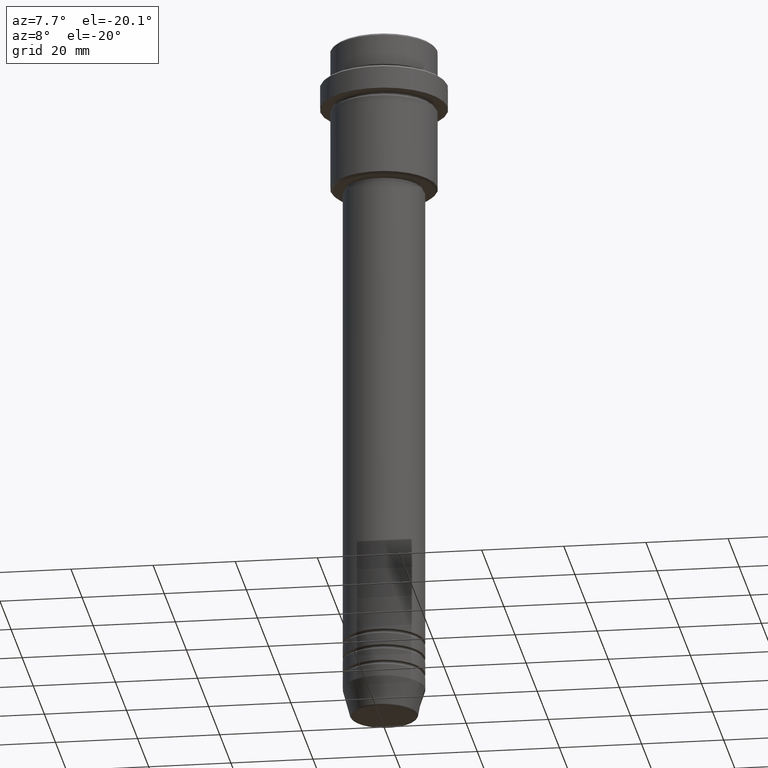
[diagram: clean part render]
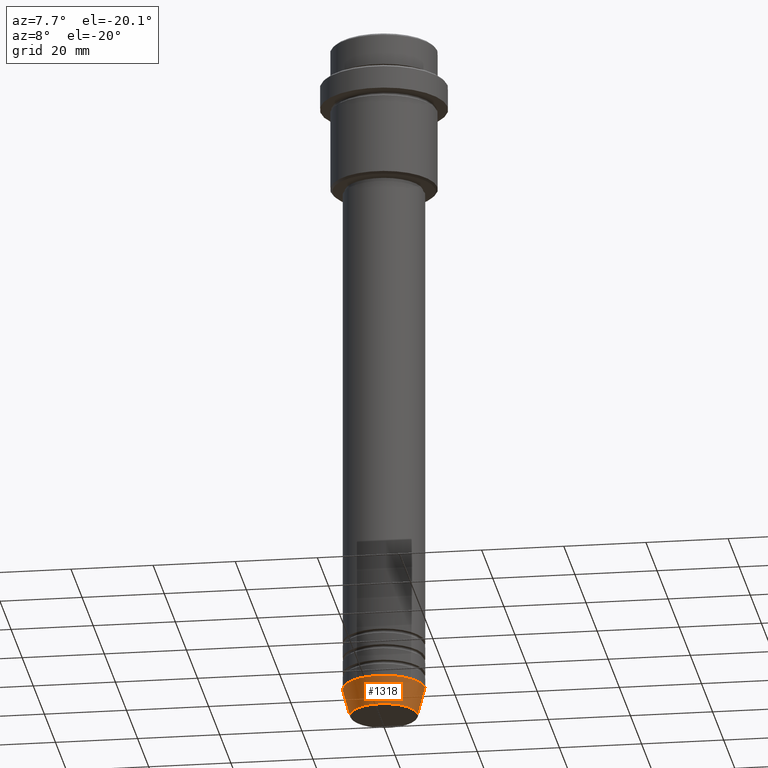
[diagram: same view with one face highlighted and labeled with its STEP entity id]
A machine part, auxiliary view. The second image highlights one B-rep face of the part: STEP entity #1318.
In plain terms, the highlighted conical surface has half-angle 15 deg.
Its self-contained STEP definition (entity closure, byte-faithful):
#99 = EDGE_CURVE ( 'NONE', #1014, #1352, #1308, .T. ) ;
#164 = DIRECTION ( 'NONE',  ( -0.000000000000000000, -0.000000000000000000, 1.000000000000000000 ) ) ;
#236 = DIRECTION ( 'NONE',  ( -0.2588190451025222938, 3.169619151431783430E-17, 0.9659258262890678681 ) ) ;
#292 = CARTESIAN_POINT ( 'NONE',  ( -10.00000000000000000, 1.224646799147353256E-15, -164.0000000000000000 ) ) ;
#308 = ORIENTED_EDGE ( 'NONE', *, *, #412, .T. ) ;
#352 = CARTESIAN_POINT ( 'NONE',  ( -10.00000000000000000, 1.224646799147353256E-15, -164.0000000000000000 ) ) ;
#401 = CARTESIAN_POINT ( 'NONE',  ( 0.000000000000000000, 0.000000000000000000, -164.0000000000000000 ) ) ;
#402 = CARTESIAN_POINT ( 'NONE',  ( -8.223655072137191269, 1.115877042642912054E-15, -170.6294095225512422 ) ) ;
#405 = EDGE_CURVE ( 'NONE', #581, #1014, #777, .T. ) ;
#412 = EDGE_CURVE ( 'NONE', #581, #1291, #752, .T. ) ;
#421 = CONICAL_SURFACE ( 'NONE', #600, 10.00000000000000000, 0.2617993877991510177 ) ;
#492 = ORIENTED_EDGE ( 'NONE', *, *, #99, .F. ) ;
#581 = VERTEX_POINT ( 'NONE', #402 ) ;
#600 = AXIS2_PLACEMENT_3D ( 'NONE', #401, #695, #1044 ) ;
#607 = EDGE_LOOP ( 'NONE', ( #1228, #308, #1190, #492 ) ) ;
#695 = DIRECTION ( 'NONE',  ( -0.000000000000000000, -0.000000000000000000, 1.000000000000000000 ) ) ;
#703 = DIRECTION ( 'NONE',  ( 1.000000000000000000, 0.000000000000000000, 0.000000000000000000 ) ) ;
#752 = CIRCLE ( 'NONE', #842, 8.223655072137191269 ) ;
#777 = LINE ( 'NONE', #352, #1369 ) ;
#832 = LINE ( 'NONE', #915, #1099 ) ;
#842 = AXIS2_PLACEMENT_3D ( 'NONE', #1121, #1007, #997 ) ;
#915 = CARTESIAN_POINT ( 'NONE',  ( 10.00000000000000000, 0.000000000000000000, -164.0000000000000000 ) ) ;
#928 = AXIS2_PLACEMENT_3D ( 'NONE', #1367, #164, #703 ) ;
#945 = EDGE_CURVE ( 'NONE', #1291, #1352, #832, .T. ) ;
#997 = DIRECTION ( 'NONE',  ( 1.000000000000000000, 0.000000000000000000, 0.000000000000000000 ) ) ;
#1007 = DIRECTION ( 'NONE',  ( -0.000000000000000000, -0.000000000000000000, 1.000000000000000000 ) ) ;
#1014 = VERTEX_POINT ( 'NONE', #292 ) ;
#1016 = DIRECTION ( 'NONE',  ( 0.2588190451025222938, 0.000000000000000000, 0.9659258262890678681 ) ) ;
#1044 = DIRECTION ( 'NONE',  ( 1.000000000000000000, 0.000000000000000000, 0.000000000000000000 ) ) ;
#1099 = VECTOR ( 'NONE', #1016, 1000.000000000000000 ) ;
#1121 = CARTESIAN_POINT ( 'NONE',  ( 0.000000000000000000, 0.000000000000000000, -170.6294095225512422 ) ) ;
#1124 = CARTESIAN_POINT ( 'NONE',  ( 10.00000000000000000, 0.000000000000000000, -164.0000000000000000 ) ) ;
#1133 = CARTESIAN_POINT ( 'NONE',  ( 8.223655072137191269, 0.000000000000000000, -170.6294095225512422 ) ) ;
#1190 = ORIENTED_EDGE ( 'NONE', *, *, #945, .T. ) ;
#1228 = ORIENTED_EDGE ( 'NONE', *, *, #405, .F. ) ;
#1291 = VERTEX_POINT ( 'NONE', #1133 ) ;
#1308 = CIRCLE ( 'NONE', #928, 10.00000000000000000 ) ;
#1318 = ADVANCED_FACE ( 'NONE', ( #1381 ), #421, .T. ) ;
#1352 = VERTEX_POINT ( 'NONE', #1124 ) ;
#1367 = CARTESIAN_POINT ( 'NONE',  ( 0.000000000000000000, 0.000000000000000000, -164.0000000000000000 ) ) ;
#1369 = VECTOR ( 'NONE', #236, 1000.000000000000000 ) ;
#1381 = FACE_OUTER_BOUND ( 'NONE', #607, .T. ) ;